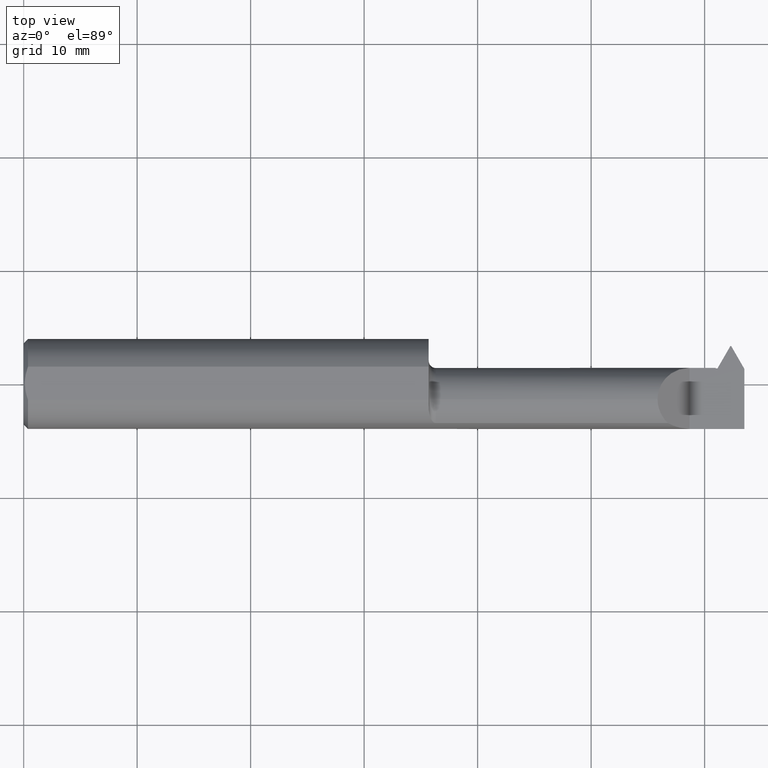
[diagram: clean part render]
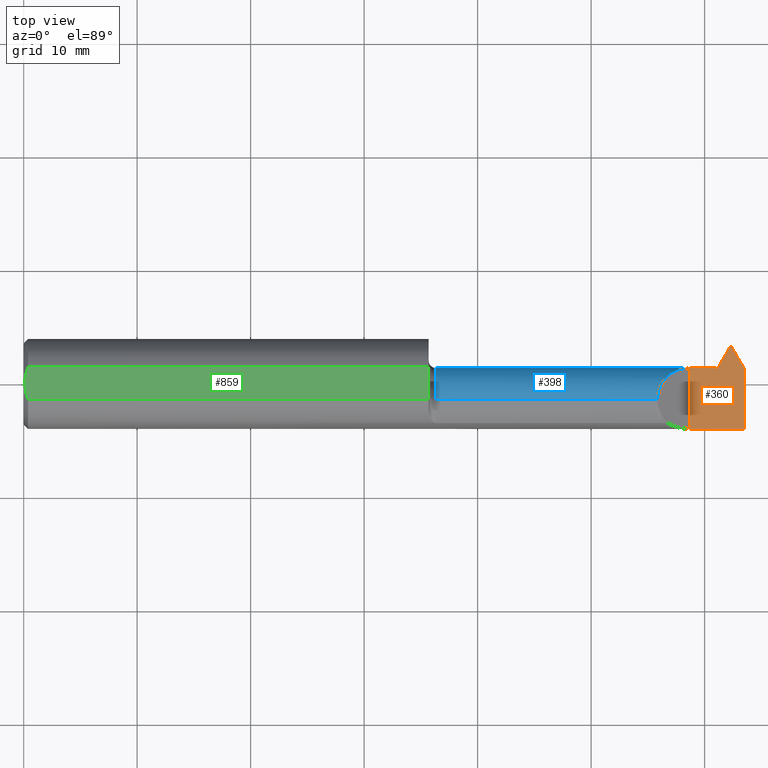
[diagram: same view with three faces highlighted in distinct colors, each labeled with its STEP entity id]
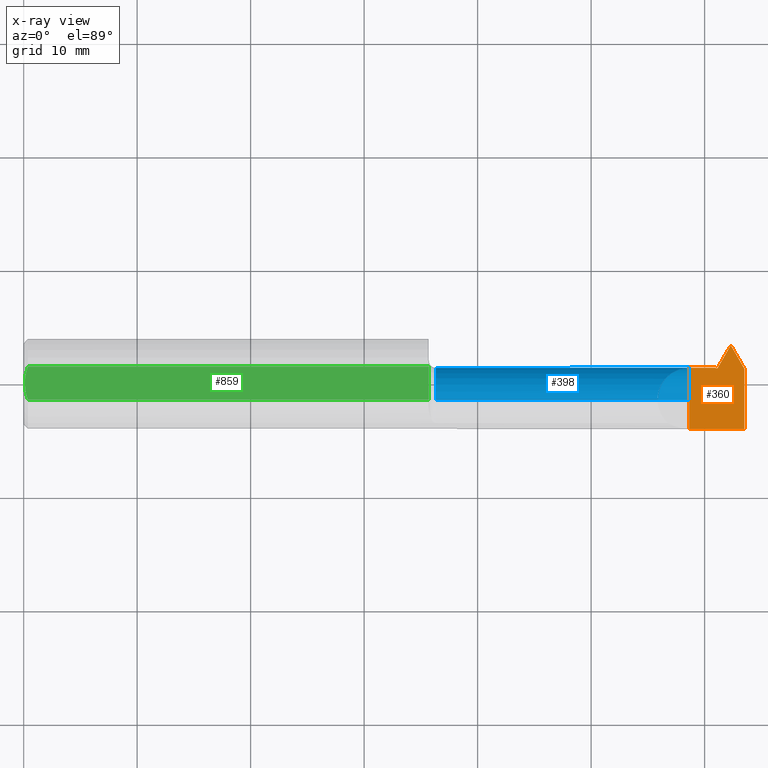
[diagram: x-ray of the same camera — body ghosted, the three highlighted faces saturated]
A machine part, top view with three faces highlighted in distinct colors.
The next image is the same camera in x-ray (body ghosted, the three faces saturated) — at least one of them is partly hidden behind the body in this view.
Their STEP definitions:

[orange] entity #360 — the highlighted planar face has unit normal (-0, 0, -1).
#6 = ORIENTED_EDGE ( 'NONE', *, *, #919, .F. ) ;
#23 = CARTESIAN_POINT ( 'NONE',  ( 2.500000000000000000, 0.1749999999999999889, -3.979970649922725226E-17 ) ) ;
#41 = LINE ( 'NONE', #837, #521 ) ;
#55 = CARTESIAN_POINT ( 'NONE',  ( 2.310000000000000053, 0.1749999999999999889, -3.979970649922725226E-17 ) ) ;
#58 = EDGE_CURVE ( 'NONE', #889, #476, #954, .T. ) ;
#62 = VECTOR ( 'NONE', #436, 39.37007874015748143 ) ;
#81 = CARTESIAN_POINT ( 'NONE',  ( 2.500000000000000000, 0.05265867555372412412, 0.000000000000000000 ) ) ;
#85 = EDGE_CURVE ( 'NONE', #707, #350, #316, .T. ) ;
#86 = CARTESIAN_POINT ( 'NONE',  ( 2.452999999999999847, 0.1340650635094609855, 0.000000000000000000 ) ) ;
#92 = EDGE_CURVE ( 'NONE', #476, #111, #41, .T. ) ;
#111 = VERTEX_POINT ( 'NONE', #408 ) ;
#124 = CARTESIAN_POINT ( 'NONE',  ( 2.310000000000000497, 0.1318999999999989348, -3.979970649922725226E-17 ) ) ;
#127 = EDGE_CURVE ( 'NONE', #707, #292, #909, .T. ) ;
#139 = VECTOR ( 'NONE', #606, 39.37007874015748143 ) ;
#155 = ORIENTED_EDGE ( 'NONE', *, *, #127, .F. ) ;
#169 = CARTESIAN_POINT ( 'NONE',  ( 2.500000000000000000, -0.1560999999999999888, -3.979970649922725226E-17 ) ) ;
#173 = DIRECTION ( 'NONE',  ( 0.5000000000000022204, -0.8660254037844373753, 0.000000000000000000 ) ) ;
#182 = CARTESIAN_POINT ( 'NONE',  ( 2.406716679003209070, 0.05389999999999999653, 0.000000000000000000 ) ) ;
#195 = EDGE_CURVE ( 'NONE', #916, #111, #718, .T. ) ;
#206 = ORIENTED_EDGE ( 'NONE', *, *, #195, .T. ) ;
#215 = VECTOR ( 'NONE', #173, 39.37007874015748854 ) ;
#219 = CARTESIAN_POINT ( 'NONE',  ( 2.310000000000000053, 0.1749999999999999889, -3.979970649922725226E-17 ) ) ;
#261 = DIRECTION ( 'NONE',  ( 2.731847993664263613E-15, -1.000000000000000000, -0.000000000000000000 ) ) ;
#263 = EDGE_CURVE ( 'NONE', #292, #498, #346, .T. ) ;
#264 = ORIENTED_EDGE ( 'NONE', *, *, #748, .F. ) ;
#284 = LINE ( 'NONE', #86, #215 ) ;
#292 = VERTEX_POINT ( 'NONE', #556 ) ;
#308 = VECTOR ( 'NONE', #626, 39.37007874015748143 ) ;
#316 = LINE ( 'NONE', #23, #139 ) ;
#321 = ORIENTED_EDGE ( 'NONE', *, *, #263, .F. ) ;
#346 = LINE ( 'NONE', #55, #643 ) ;
#348 = LINE ( 'NONE', #923, #691 ) ;
#350 = VERTEX_POINT ( 'NONE', #81 ) ;
#360 = ADVANCED_FACE ( 'NONE', ( #819 ), #666, .F. ) ;
#377 = VERTEX_POINT ( 'NONE', #812 ) ;
#387 = LINE ( 'NONE', #639, #783 ) ;
#408 = CARTESIAN_POINT ( 'NONE',  ( 2.451750000000000096, 0.1318999999999999617, -3.979970649922725226E-17 ) ) ;
#436 = DIRECTION ( 'NONE',  ( 1.000000000000000000, -0.000000000000000000, -0.000000000000000000 ) ) ;
#438 = DIRECTION ( 'NONE',  ( -1.000000000000000000, 0.000000000000000000, 0.000000000000000000 ) ) ;
#445 = ORIENTED_EDGE ( 'NONE', *, *, #85, .T. ) ;
#453 = DIRECTION ( 'NONE',  ( -0.000000000000000000, 0.000000000000000000, -1.000000000000000000 ) ) ;
#455 = EDGE_LOOP ( 'NONE', ( #445, #6, #206, #743, #956, #264, #931, #321, #155 ) ) ;
#461 = AXIS2_PLACEMENT_3D ( 'NONE', #219, #453, #438 ) ;
#476 = VERTEX_POINT ( 'NONE', #182 ) ;
#498 = VERTEX_POINT ( 'NONE', #605 ) ;
#521 = VECTOR ( 'NONE', #545, 39.37007874015748854 ) ;
#545 = DIRECTION ( 'NONE',  ( 0.5000000000000026645, 0.8660254037844370423, 0.000000000000000000 ) ) ;
#556 = CARTESIAN_POINT ( 'NONE',  ( 2.310000000000000053, -0.1560999999999999888, -3.979970649922725226E-17 ) ) ;
#605 = CARTESIAN_POINT ( 'NONE',  ( 2.310000000000000053, 0.05590000000000001218, -3.979970649922725226E-17 ) ) ;
#606 = DIRECTION ( 'NONE',  ( -0.000000000000000000, 1.000000000000000000, -0.000000000000000000 ) ) ;
#616 = EDGE_CURVE ( 'NONE', #498, #377, #387, .T. ) ;
#626 = DIRECTION ( 'NONE',  ( -1.000000000000000000, -7.250278991207125343E-15, 0.000000000000000000 ) ) ;
#639 = CARTESIAN_POINT ( 'NONE',  ( 1.405000000000000249, 0.05590000000000001218, -3.979970649922725226E-17 ) ) ;
#643 = VECTOR ( 'NONE', #648, 39.37007874015748143 ) ;
#648 = DIRECTION ( 'NONE',  ( -0.000000000000000000, 1.000000000000000000, -0.000000000000000000 ) ) ;
#666 = PLANE ( 'NONE',  #461 ) ;
#691 = VECTOR ( 'NONE', #261, 39.37007874015748143 ) ;
#692 = DIRECTION ( 'NONE',  ( -1.000000000000000000, -0.000000000000000000, -0.000000000000000000 ) ) ;
#693 = VECTOR ( 'NONE', #692, 39.37007874015748143 ) ;
#707 = VERTEX_POINT ( 'NONE', #710 ) ;
#710 = CARTESIAN_POINT ( 'NONE',  ( 2.500000000000000000, -0.1560999999999999333, -3.979970649922725226E-17 ) ) ;
#717 = DIRECTION ( 'NONE',  ( 1.000000000000000000, 0.000000000000000000, 0.000000000000000000 ) ) ;
#718 = LINE ( 'NONE', #124, #308 ) ;
#743 = ORIENTED_EDGE ( 'NONE', *, *, #92, .F. ) ;
#748 = EDGE_CURVE ( 'NONE', #377, #889, #348, .T. ) ;
#783 = VECTOR ( 'NONE', #717, 39.37007874015748143 ) ;
#793 = CARTESIAN_POINT ( 'NONE',  ( 2.454250000000000043, 0.1318999999999999895, 0.000000000000000000 ) ) ;
#805 = CARTESIAN_POINT ( 'NONE',  ( 2.406716679003209070, 0.05389999999999999653, 0.000000000000000000 ) ) ;
#812 = CARTESIAN_POINT ( 'NONE',  ( 2.400999999999999801, 0.05590000000000001218, 0.000000000000000000 ) ) ;
#819 = FACE_OUTER_BOUND ( 'NONE', #455, .T. ) ;
#837 = CARTESIAN_POINT ( 'NONE',  ( 2.406716679003209070, 0.05389999999999999653, 0.000000000000000000 ) ) ;
#887 = CARTESIAN_POINT ( 'NONE',  ( 2.400999999999999801, 0.05389999999999999653, 0.000000000000000000 ) ) ;
#889 = VERTEX_POINT ( 'NONE', #887 ) ;
#909 = LINE ( 'NONE', #169, #693 ) ;
#916 = VERTEX_POINT ( 'NONE', #793 ) ;
#919 = EDGE_CURVE ( 'NONE', #916, #350, #284, .T. ) ;
#923 = CARTESIAN_POINT ( 'NONE',  ( 2.400999999999999801, 0.05389999999999999653, 0.000000000000000000 ) ) ;
#931 = ORIENTED_EDGE ( 'NONE', *, *, #616, .F. ) ;
#954 = LINE ( 'NONE', #805, #62 ) ;
#956 = ORIENTED_EDGE ( 'NONE', *, *, #58, .F. ) ;

[blue] entity #398 — the highlighted cylindrical surface (edge-blend (fillet) strip) has radius 2.8194 mm, axis along (-1, -0, -0).
#1 = CARTESIAN_POINT ( 'NONE',  ( 2.392464930598871664, 0.04536493059887181101, -0.04719955211401768991 ) ) ;
#8 = DIRECTION ( 'NONE',  ( 1.000000000000000000, 0.000000000000000000, 0.000000000000000000 ) ) ;
#21 = CARTESIAN_POINT ( 'NONE',  ( 2.412458785480013024, 0.03700406005429841827, -0.06195031978540700007 ) ) ;
#25 = CARTESIAN_POINT ( 'NONE',  ( 2.310000000000000053, 0.05589995495494588795, 9.999999999973052634E-05 ) ) ;
#34 = ORIENTED_EDGE ( 'NONE', *, *, #48, .F. ) ;
#35 = EDGE_CURVE ( 'NONE', #297, #498, #353, .T. ) ;
#39 = VERTEX_POINT ( 'NONE', #672 ) ;
#44 = CARTESIAN_POINT ( 'NONE',  ( 2.412458785480013024, -0.05509999999999999620, 0.000000000000000000 ) ) ;
#46 = VECTOR ( 'NONE', #617, 39.37007874015748143 ) ;
#48 = EDGE_CURVE ( 'NONE', #664, #377, #448, .T. ) ;
#51 =( BOUNDED_CURVE ( )  B_SPLINE_CURVE ( 3, ( #25, #236, #246, #540 ),
 .UNSPECIFIED., .F., .F. ) 
 B_SPLINE_CURVE_WITH_KNOTS ( ( 4, 4 ),
 ( 4.713289881407453308, 6.283185307179586232 ),
 .UNSPECIFIED. ) 
 CURVE ( )  GEOMETRIC_REPRESENTATION_ITEM ( )  RATIONAL_B_SPLINE_CURVE ( ( 1.000000000000000000, 0.8049501506993195221, 0.8049501506993195221, 1.000000000000000000 ) ) 
 REPRESENTATION_ITEM ( '' )  );
#72 = CYLINDRICAL_SURFACE ( 'NONE', #676, 0.1110000000000000014 ) ;
#96 = CARTESIAN_POINT ( 'NONE',  ( 1.405000000000000249, 0.04536493059887179019, -0.04719955211401773848 ) ) ;
#97 = CARTESIAN_POINT ( 'NONE',  ( 2.414716234995701871, 0.02897099956963808051, -0.07389339752676279960 ) ) ;
#105 = LINE ( 'NONE', #96, #46 ) ;
#112 = CARTESIAN_POINT ( 'NONE',  ( 2.419121698429875345, -0.01083030511044175831, -0.1110000000000003345 ) ) ;
#120 = CARTESIAN_POINT ( 'NONE',  ( 2.419930999995321574, -0.05510000000000080111, -0.1109999999999999876 ) ) ;
#121 = EDGE_CURVE ( 'NONE', #572, #234, #549, .T. ) ;
#192 = CARTESIAN_POINT ( 'NONE',  ( 1.429999999999999938, -0.05509999999999999620, 0.1110000000000000014 ) ) ;
#199 = CARTESIAN_POINT ( 'NONE',  ( 2.411644403619502608, 0.04536493059887507229, -0.04719955211401832829 ) ) ;
#224 = FACE_BOUND ( 'NONE', #814, .T. ) ;
#225 = CARTESIAN_POINT ( 'NONE',  ( 2.400999999999999801, 0.05590000000000001218, 0.000000000000000000 ) ) ;
#234 = VERTEX_POINT ( 'NONE', #857 ) ;
#236 = CARTESIAN_POINT ( 'NONE',  ( 2.245024168887416405, 0.05584141814640498219, 0.06507583111258367914 ) ) ;
#238 = VERTEX_POINT ( 'NONE', #349 ) ;
#240 = CARTESIAN_POINT ( 'NONE',  ( 2.412458785480013024, 0.006850319785407048105, -0.09210406005429837284 ) ) ;
#246 = CARTESIAN_POINT ( 'NONE',  ( 2.199100000000000943, 0.009875857480521079562, 0.1110000000000000014 ) ) ;
#252 = ORIENTED_EDGE ( 'NONE', *, *, #740, .F. ) ;
#268 = EDGE_LOOP ( 'NONE', ( #252, #951, #712, #680, #386, #599, #854, #34, #791 ) ) ;
#270 = DIRECTION ( 'NONE',  ( 0.000000000000000000, 0.000000000000000000, 1.000000000000000000 ) ) ;
#280 = LINE ( 'NONE', #637, #595 ) ;
#285 = EDGE_CURVE ( 'NONE', #872, #715, #280, .T. ) ;
#297 = VERTEX_POINT ( 'NONE', #934 ) ;
#315 = CARTESIAN_POINT ( 'NONE',  ( 2.414716234995701871, 0.01879339752676281033, -0.08407099956963805243 ) ) ;
#319 =( BOUNDED_CURVE ( )  B_SPLINE_CURVE ( 3, ( #21, #97, #315, #240 ),
 .UNSPECIFIED., .F., .F. ) 
 B_SPLINE_CURVE_WITH_KNOTS ( ( 4, 4 ),
 ( 2.948301984786019236, 3.334883322393566996 ),
 .UNSPECIFIED. ) 
 CURVE ( )  GEOMETRIC_REPRESENTATION_ITEM ( )  RATIONAL_B_SPLINE_CURVE ( ( 1.000000000000000000, 0.9875849649017649501, 0.9875849649017649501, 1.000000000000000000 ) ) 
 REPRESENTATION_ITEM ( '' )  );
#330 = CARTESIAN_POINT ( 'NONE',  ( 2.419930999995321574, -0.05510000000000080111, -0.1109999999999999876 ) ) ;
#335 = CARTESIAN_POINT ( 'NONE',  ( 1.405000000000000249, -0.05509999999999998233, -0.1110000000000000014 ) ) ;
#340 = AXIS2_PLACEMENT_3D ( 'NONE', #603, #881, #895 ) ;
#345 = CARTESIAN_POINT ( 'NONE',  ( 2.416039260333789240, 0.02654051824741837998, -0.08726758657088898308 ) ) ;
#347 = ORIENTED_EDGE ( 'NONE', *, *, #716, .F. ) ;
#349 = CARTESIAN_POINT ( 'NONE',  ( 2.411644403619502608, 0.04536493059887507229, -0.04719955211401832829 ) ) ;
#353 = CIRCLE ( 'NONE', #340, 0.1110000000000000014 ) ;
#377 = VERTEX_POINT ( 'NONE', #812 ) ;
#386 = ORIENTED_EDGE ( 'NONE', *, *, #502, .F. ) ;
#387 = LINE ( 'NONE', #639, #783 ) ;
#398 = ADVANCED_FACE ( 'NONE', ( #224, #510 ), #72, .T. ) ;
#420 = CARTESIAN_POINT ( 'NONE',  ( 2.412458785480013024, 0.03700406005429841827, -0.06195031978540700007 ) ) ;
#442 = AXIS2_PLACEMENT_3D ( 'NONE', #44, #560, #270 ) ;
#448 =( BOUNDED_CURVE ( )  B_SPLINE_CURVE ( 3, ( #1, #734, #663, #225 ),
 .UNSPECIFIED., .F., .F. ) 
 B_SPLINE_CURVE_WITH_KNOTS ( ( 4, 4 ),
 ( 1.131590070290673378, 1.570796326794881681 ),
 .UNSPECIFIED. ) 
 CURVE ( )  GEOMETRIC_REPRESENTATION_ITEM ( )  RATIONAL_B_SPLINE_CURVE ( ( 1.000000000000000000, 0.9839893210965720005, 0.9839893210965720005, 1.000000000000000000 ) ) 
 REPRESENTATION_ITEM ( '' )  );
#462 = AXIS2_PLACEMENT_3D ( 'NONE', #581, #8, #807 ) ;
#498 = VERTEX_POINT ( 'NONE', #605 ) ;
#502 = EDGE_CURVE ( 'NONE', #297, #872, #51, .T. ) ;
#510 = FACE_OUTER_BOUND ( 'NONE', #268, .T. ) ;
#522 = CIRCLE ( 'NONE', #462, 0.1110000000000000014 ) ;
#540 = CARTESIAN_POINT ( 'NONE',  ( 2.199100000000000499, -0.05509999999999999620, 0.1110000000000000014 ) ) ;
#549 = LINE ( 'NONE', #335, #756 ) ;
#560 = DIRECTION ( 'NONE',  ( 1.000000000000000000, -0.000000000000000000, -0.000000000000000000 ) ) ;
#572 = VERTEX_POINT ( 'NONE', #330 ) ;
#581 = CARTESIAN_POINT ( 'NONE',  ( 1.429999999999999938, -0.05509999999999999620, 0.000000000000000000 ) ) ;
#595 = VECTOR ( 'NONE', #925, 39.37007874015748143 ) ;
#599 = ORIENTED_EDGE ( 'NONE', *, *, #35, .T. ) ;
#602 = EDGE_CURVE ( 'NONE', #628, #39, #319, .T. ) ;
#603 = CARTESIAN_POINT ( 'NONE',  ( 2.310000000000000053, -0.05509999999999999620, 0.000000000000000000 ) ) ;
#605 = CARTESIAN_POINT ( 'NONE',  ( 2.310000000000000053, 0.05590000000000001218, -3.979970649922725226E-17 ) ) ;
#616 = EDGE_CURVE ( 'NONE', #498, #377, #387, .T. ) ;
#617 = DIRECTION ( 'NONE',  ( -1.000000000000000000, -0.000000000000000000, -0.000000000000000000 ) ) ;
#624 = CARTESIAN_POINT ( 'NONE',  ( 2.392464930598871664, 0.04536493059887181101, -0.04719955211401768991 ) ) ;
#628 = VERTEX_POINT ( 'NONE', #420 ) ;
#637 = CARTESIAN_POINT ( 'NONE',  ( 1.405000000000000249, -0.05509999999999999620, 0.1110000000000000014 ) ) ;
#639 = CARTESIAN_POINT ( 'NONE',  ( 1.405000000000000249, 0.05590000000000001218, -3.979970649922725226E-17 ) ) ;
#645 =( BOUNDED_CURVE ( )  B_SPLINE_CURVE ( 3, ( #120, #112, #345, #199 ),
 .UNSPECIFIED., .F., .F. ) 
 B_SPLINE_CURVE_WITH_KNOTS ( ( 4, 4 ),
 ( 3.320488901919218527, 4.452078972209921659 ),
 .UNSPECIFIED. ) 
 CURVE ( )  GEOMETRIC_REPRESENTATION_ITEM ( )  RATIONAL_B_SPLINE_CURVE ( ( 1.000000000000000000, 0.8961084394353004967, 0.8961084394353004967, 1.000000000000000000 ) ) 
 REPRESENTATION_ITEM ( '' )  );
#651 = CARTESIAN_POINT ( 'NONE',  ( 2.199100000000000499, -0.05509999999999999620, 0.1110000000000000014 ) ) ;
#656 = DIRECTION ( 'NONE',  ( -1.000000000000000000, -0.000000000000000000, -0.000000000000000000 ) ) ;
#663 = CARTESIAN_POINT ( 'NONE',  ( 2.398037538417669978, 0.05590000000000001218, -0.01638262716674719274 ) ) ;
#664 = VERTEX_POINT ( 'NONE', #624 ) ;
#672 = CARTESIAN_POINT ( 'NONE',  ( 2.412458785480013024, 0.006850319785407048105, -0.09210406005429837284 ) ) ;
#676 = AXIS2_PLACEMENT_3D ( 'NONE', #745, #656, #958 ) ;
#680 = ORIENTED_EDGE ( 'NONE', *, *, #285, .F. ) ;
#687 = DIRECTION ( 'NONE',  ( -1.000000000000000000, -0.000000000000000000, -0.000000000000000000 ) ) ;
#712 = ORIENTED_EDGE ( 'NONE', *, *, #876, .T. ) ;
#715 = VERTEX_POINT ( 'NONE', #192 ) ;
#716 = EDGE_CURVE ( 'NONE', #39, #628, #863, .T. ) ;
#717 = DIRECTION ( 'NONE',  ( 1.000000000000000000, 0.000000000000000000, 0.000000000000000000 ) ) ;
#719 = ORIENTED_EDGE ( 'NONE', *, *, #602, .F. ) ;
#734 = CARTESIAN_POINT ( 'NONE',  ( 2.395146223367076388, 0.05233117082158721123, -0.03237180885875237668 ) ) ;
#740 = EDGE_CURVE ( 'NONE', #572, #238, #645, .T. ) ;
#745 = CARTESIAN_POINT ( 'NONE',  ( 1.405000000000000249, -0.05509999999999999620, 0.000000000000000000 ) ) ;
#756 = VECTOR ( 'NONE', #687, 39.37007874015748143 ) ;
#783 = VECTOR ( 'NONE', #717, 39.37007874015748143 ) ;
#791 = ORIENTED_EDGE ( 'NONE', *, *, #932, .F. ) ;
#807 = DIRECTION ( 'NONE',  ( 0.000000000000000000, 0.000000000000000000, -1.000000000000000000 ) ) ;
#812 = CARTESIAN_POINT ( 'NONE',  ( 2.400999999999999801, 0.05590000000000001218, 0.000000000000000000 ) ) ;
#814 = EDGE_LOOP ( 'NONE', ( #347, #719 ) ) ;
#854 = ORIENTED_EDGE ( 'NONE', *, *, #616, .T. ) ;
#857 = CARTESIAN_POINT ( 'NONE',  ( 1.429999999999999938, -0.05509999999999998233, -0.1110000000000000014 ) ) ;
#863 = CIRCLE ( 'NONE', #442, 0.1110000000000000014 ) ;
#872 = VERTEX_POINT ( 'NONE', #651 ) ;
#876 = EDGE_CURVE ( 'NONE', #234, #715, #522, .T. ) ;
#881 = DIRECTION ( 'NONE',  ( -1.000000000000000000, -0.000000000000000000, -0.000000000000000000 ) ) ;
#895 = DIRECTION ( 'NONE',  ( 0.000000000000000000, 0.000000000000000000, 1.000000000000000000 ) ) ;
#925 = DIRECTION ( 'NONE',  ( -1.000000000000000000, -0.000000000000000000, -0.000000000000000000 ) ) ;
#932 = EDGE_CURVE ( 'NONE', #238, #664, #105, .T. ) ;
#934 = CARTESIAN_POINT ( 'NONE',  ( 2.310000000000000053, 0.05589995495494588795, 9.999999999973052634E-05 ) ) ;
#951 = ORIENTED_EDGE ( 'NONE', *, *, #121, .T. ) ;
#958 = DIRECTION ( 'NONE',  ( 0.000000000000000000, 0.000000000000000000, 1.000000000000000000 ) ) ;

[green] entity #859 — the highlighted planar face has unit normal (-0, 0, -1).
#49 = ORIENTED_EDGE ( 'NONE', *, *, #532, .F. ) ;
#64 = CARTESIAN_POINT ( 'NONE',  ( 2.500000000000000000, -0.05756040305626781983, 0.1450999999999999512 ) ) ;
#71 = CARTESIAN_POINT ( 'NONE',  ( 0.000000000000000000, 0.1749999999999999889, 0.1450999999999999512 ) ) ;
#93 = CARTESIAN_POINT ( 'NONE',  ( 0.01158831187866349310, 0.04830813087846574927, 0.1450999999999999235 ) ) ;
#118 = DIRECTION ( 'NONE',  ( 0.000000000000000000, -1.000000000000000000, 0.000000000000000000 ) ) ;
#136 = CARTESIAN_POINT ( 'NONE',  ( 0.01499999999999970975, -0.05756040305626781983, 0.1450999999999999512 ) ) ;
#180 = ORIENTED_EDGE ( 'NONE', *, *, #287, .F. ) ;
#190 = VERTEX_POINT ( 'NONE', #424 ) ;
#211 = B_SPLINE_CURVE_WITH_KNOTS ( 'NONE', 3,
 ( #766, #93, #620, #683, #918, #459 ),
 .UNSPECIFIED., .F., .F.,
 ( 4, 2, 4 ),
 ( 0.003161694502929457244, 0.003901142131335591512, 0.004640589759741725780 ),
 .UNSPECIFIED. ) ;
#222 = B_SPLINE_CURVE_WITH_KNOTS ( 'NONE', 3,
 ( #596, #953, #894, #884, #435, #286 ),
 .UNSPECIFIED., .F., .F.,
 ( 4, 2, 4 ),
 ( 0.004640589759741725780, 0.005379751224090827816, 0.006118912688439928985 ),
 .UNSPECIFIED. ) ;
#223 = LINE ( 'NONE', #64, #907 ) ;
#235 = ORIENTED_EDGE ( 'NONE', *, *, #597, .T. ) ;
#266 = CARTESIAN_POINT ( 'NONE',  ( 1.405000000000000249, -0.05756040305626783371, 0.1450999999999999512 ) ) ;
#278 = ORIENTED_EDGE ( 'NONE', *, *, #378, .T. ) ;
#286 = CARTESIAN_POINT ( 'NONE',  ( 0.01499999999999970975, -0.05756040305626781983, 0.1450999999999999512 ) ) ;
#287 = EDGE_CURVE ( 'NONE', #822, #681, #870, .T. ) ;
#302 = VERTEX_POINT ( 'NONE', #136 ) ;
#310 = VERTEX_POINT ( 'NONE', #496 ) ;
#359 = PLANE ( 'NONE',  #661 ) ;
#368 = DIRECTION ( 'NONE',  ( -0.000000000000000000, 0.000000000000000000, -1.000000000000000000 ) ) ;
#378 = EDGE_CURVE ( 'NONE', #310, #302, #222, .T. ) ;
#383 = LINE ( 'NONE', #760, #612 ) ;
#405 = EDGE_LOOP ( 'NONE', ( #180, #49, #235, #278, #649 ) ) ;
#424 = CARTESIAN_POINT ( 'NONE',  ( 0.01499999999999970281, 0.05756040305626781983, 0.1450999999999999512 ) ) ;
#435 = CARTESIAN_POINT ( 'NONE',  ( 0.01161840624095520323, -0.04838974479540041063, 0.1450999999999999790 ) ) ;
#437 = CARTESIAN_POINT ( 'NONE',  ( 1.405000000000000249, 0.05756040305626781289, 0.1450999999999999512 ) ) ;
#441 = DIRECTION ( 'NONE',  ( -1.000000000000000000, -0.000000000000000000, -0.000000000000000000 ) ) ;
#459 = CARTESIAN_POINT ( 'NONE',  ( 0.003999999999999637526, 1.884449684559922719E-17, 0.1450999999999999512 ) ) ;
#496 = CARTESIAN_POINT ( 'NONE',  ( 0.003999999999999637526, 1.884449684559922719E-17, 0.1450999999999999512 ) ) ;
#500 = CARTESIAN_POINT ( 'NONE',  ( 1.405000000000000249, 0.1749999999999999889, 0.1450999999999999512 ) ) ;
#513 = FACE_OUTER_BOUND ( 'NONE', #405, .T. ) ;
#532 = EDGE_CURVE ( 'NONE', #190, #822, #383, .T. ) ;
#596 = CARTESIAN_POINT ( 'NONE',  ( 0.003999999999999637526, 1.884449684559922719E-17, 0.1450999999999999512 ) ) ;
#597 = EDGE_CURVE ( 'NONE', #190, #310, #211, .T. ) ;
#612 = VECTOR ( 'NONE', #827, 39.37007874015748143 ) ;
#620 = CARTESIAN_POINT ( 'NONE',  ( 0.008823987512428013366, 0.03887788046871690911, 0.1450999999999999512 ) ) ;
#649 = ORIENTED_EDGE ( 'NONE', *, *, #842, .F. ) ;
#661 = AXIS2_PLACEMENT_3D ( 'NONE', #71, #368, #892 ) ;
#681 = VERTEX_POINT ( 'NONE', #266 ) ;
#683 = CARTESIAN_POINT ( 'NONE',  ( 0.005030132703184393185, 0.01970541148932063516, 0.1450999999999999512 ) ) ;
#760 = CARTESIAN_POINT ( 'NONE',  ( 2.500000000000000000, 0.05756040305626781983, 0.1450999999999999512 ) ) ;
#766 = CARTESIAN_POINT ( 'NONE',  ( 0.01499999999999970281, 0.05756040305626781983, 0.1450999999999999512 ) ) ;
#822 = VERTEX_POINT ( 'NONE', #437 ) ;
#827 = DIRECTION ( 'NONE',  ( 1.000000000000000000, 0.000000000000000000, 0.000000000000000000 ) ) ;
#842 = EDGE_CURVE ( 'NONE', #681, #302, #223, .T. ) ;
#846 = VECTOR ( 'NONE', #118, 39.37007874015748143 ) ;
#859 = ADVANCED_FACE ( 'NONE', ( #513 ), #359, .F. ) ;
#870 = LINE ( 'NONE', #500, #846 ) ;
#884 = CARTESIAN_POINT ( 'NONE',  ( 0.008818052469296599680, -0.03886761757380381710, 0.1450999999999999512 ) ) ;
#892 = DIRECTION ( 'NONE',  ( -1.000000000000000000, 0.000000000000000000, 0.000000000000000000 ) ) ;
#894 = CARTESIAN_POINT ( 'NONE',  ( 0.005011318927232567486, -0.01959047621504285061, 0.1450999999999999512 ) ) ;
#907 = VECTOR ( 'NONE', #441, 39.37007874015748143 ) ;
#918 = CARTESIAN_POINT ( 'NONE',  ( 0.003999999999999592423, 0.009855731042683129120, 0.1450999999999999790 ) ) ;
#953 = CARTESIAN_POINT ( 'NONE',  ( 0.003999999999999590689, -0.009851916903761231276, 0.1450999999999999235 ) ) ;